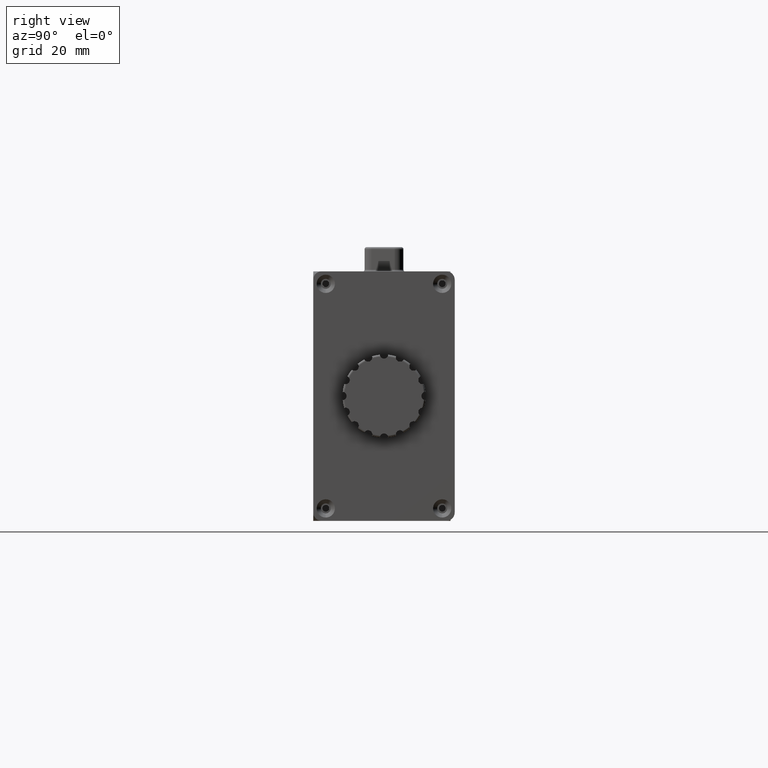
[diagram: clean part render]
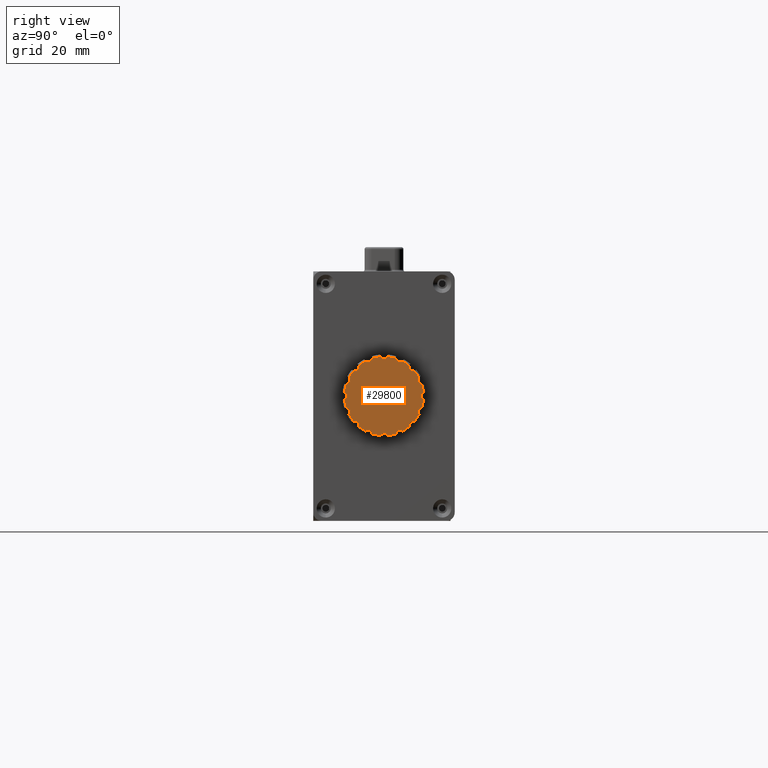
[diagram: same view with one face highlighted and labeled with its STEP entity id]
A machine part, right view. The second image highlights one B-rep face of the part: STEP entity #29800.
In plain terms, the highlighted planar face has unit normal (-1, 0, 0).
Its self-contained STEP definition (entity closure, byte-faithful):
#107 = ORIENTED_EDGE ( 'NONE', *, *, #13058, .T. ) ;
#111 = CIRCLE ( 'NONE', #13458, 9.500000000000000000 ) ;
#132 = VERTEX_POINT ( 'NONE', #15921 ) ;
#236 = DIRECTION ( 'NONE',  ( 0.0000000000000000000, -0.3826834323650759000, -0.9238795325112925100 ) ) ;
#526 = DIRECTION ( 'NONE',  ( 1.000000000000000000, -5.271885064151831000E-017, -3.465952431306727200E-016 ) ) ;
#533 = EDGE_CURVE ( 'NONE', #18393, #25741, #12400, .T. ) ;
#847 = AXIS2_PLACEMENT_3D ( 'NONE', #28408, #11118, #14014 ) ;
#864 = VERTEX_POINT ( 'NONE', #7414 ) ;
#931 = ORIENTED_EDGE ( 'NONE', *, *, #32259, .F. ) ;
#1180 = VERTEX_POINT ( 'NONE', #24219 ) ;
#1260 = CARTESIAN_POINT ( 'NONE',  ( 129.5000000000000000, 16.99999999999999600, 1.710257685525020000E-014 ) ) ;
#1399 = CARTESIAN_POINT ( 'NONE',  ( 129.5000000000000000, 24.07106781186553900, -7.071067811865393800 ) ) ;
#1405 = DIRECTION ( 'NONE',  ( 0.0000000000000000000, -3.652049423109067300E-016, 1.000000000000000000 ) ) ;
#1491 = DIRECTION ( 'NONE',  ( 0.0000000000000000000, 0.3826834323650911100, -0.9238795325112862900 ) ) ;
#1656 = VERTEX_POINT ( 'NONE', #5784 ) ;
#2031 = CARTESIAN_POINT ( 'NONE',  ( 129.5000000000000000, 16.99999999999999600, 1.710257685525020000E-014 ) ) ;
#2049 = CARTESIAN_POINT ( 'NONE',  ( 129.5000000000000000, 17.84326374877613800, 9.462500000000016300 ) ) ;
#2123 = ORIENTED_EDGE ( 'NONE', *, *, #11312, .T. ) ;
#2203 = DIRECTION ( 'NONE',  ( 1.000000000000000000, -5.271885064151831000E-017, -3.465952431306727200E-016 ) ) ;
#2222 = AXIS2_PLACEMENT_3D ( 'NONE', #8627, #5944, #20520 ) ;
#2260 = DIRECTION ( 'NONE',  ( 0.0000000000000000000, 0.7071067811865487900, -0.7071067811865462400 ) ) ;
#2483 = ORIENTED_EDGE ( 'NONE', *, *, #22172, .F. ) ;
#2573 = CIRCLE ( 'NONE', #31675, 9.500000000000000000 ) ;
#2762 = DIRECTION ( 'NONE',  ( 1.000000000000000000, -5.271885064151831000E-017, -3.465952431306727200E-016 ) ) ;
#2805 = EDGE_CURVE ( 'NONE', #22929, #10160, #36651, .T. ) ;
#2942 = ORIENTED_EDGE ( 'NONE', *, *, #27716, .F. ) ;
#2948 = EDGE_CURVE ( 'NONE', #31199, #28751, #33453, .T. ) ;
#3152 = CARTESIAN_POINT ( 'NONE',  ( 129.5000000000000000, 9.712724567933875600, 6.094720401889306400 ) ) ;
#3404 = EDGE_CURVE ( 'NONE', #31274, #10160, #5825, .T. ) ;
#3510 = CARTESIAN_POINT ( 'NONE',  ( 129.5000000000000000, 26.46250000000000600, -0.8432637487760265000 ) ) ;
#3545 = CIRCLE ( 'NONE', #23227, 9.500000000000000000 ) ;
#3645 = EDGE_CURVE ( 'NONE', #10922, #26994, #20523, .T. ) ;
#3746 = VERTEX_POINT ( 'NONE', #3152 ) ;
#3756 = ORIENTED_EDGE ( 'NONE', *, *, #14607, .F. ) ;
#3798 = VERTEX_POINT ( 'NONE', #26070 ) ;
#3867 = CIRCLE ( 'NONE', #14749, 1.000000000000000900 ) ;
#3966 = CIRCLE ( 'NONE', #27970, 9.500000000000000000 ) ;
#3969 = DIRECTION ( 'NONE',  ( 1.000000000000000000, -5.271885064151831000E-017, -3.465952431306727200E-016 ) ) ;
#4042 = ORIENTED_EDGE ( 'NONE', *, *, #26972, .F. ) ;
#4133 = DIRECTION ( 'NONE',  ( 1.000000000000000000, -5.271885064151831000E-017, -3.465952431306727200E-016 ) ) ;
#4299 = CARTESIAN_POINT ( 'NONE',  ( 129.5000000000000000, 16.99999999999999600, 1.710257685525020000E-014 ) ) ;
#4362 = ORIENTED_EDGE ( 'NONE', *, *, #24798, .T. ) ;
#4370 = CARTESIAN_POINT ( 'NONE',  ( 129.5000000000000000, 16.99999999999999600, 1.710257685525020000E-014 ) ) ;
#4552 = CIRCLE ( 'NONE', #21691, 1.000000000000000200 ) ;
#4586 = VERTEX_POINT ( 'NONE', #15248 ) ;
#4657 = DIRECTION ( 'NONE',  ( 0.0000000000000000000, 1.000000000000000000, 3.838076581973804200E-015 ) ) ;
#4732 = AXIS2_PLACEMENT_3D ( 'NONE', #8712, #3969, #9341 ) ;
#4828 = EDGE_CURVE ( 'NONE', #33041, #21184, #8389, .T. ) ;
#5353 = CARTESIAN_POINT ( 'NONE',  ( 129.5000000000000000, 26.23879532511290300, -3.826834323650785100 ) ) ;
#5784 = CARTESIAN_POINT ( 'NONE',  ( 129.5000000000000000, 26.06491314215872300, 2.842067860751759300 ) ) ;
#5800 = VERTEX_POINT ( 'NONE', #23677 ) ;
#5825 = CIRCLE ( 'NONE', #10907, 9.500000000000000000 ) ;
#5837 = EDGE_CURVE ( 'NONE', #28367, #28751, #28207, .T. ) ;
#5889 = CARTESIAN_POINT ( 'NONE',  ( 129.5000000000000000, 20.82683432365076800, 8.238795325112962000 ) ) ;
#5942 = EDGE_CURVE ( 'NONE', #18655, #29045, #15089, .T. ) ;
#5944 = DIRECTION ( 'NONE',  ( 1.000000000000000000, -5.271885064151831000E-017, -3.465952431306727200E-016 ) ) ;
#6028 = AXIS2_PLACEMENT_3D ( 'NONE', #7448, #30581, #36261 ) ;
#6090 = DIRECTION ( 'NONE',  ( 0.0000000000000000000, -3.652049423109067300E-016, 1.000000000000000000 ) ) ;
#6148 = AXIS2_PLACEMENT_3D ( 'NONE', #9018, #34777, #6090 ) ;
#6534 = CARTESIAN_POINT ( 'NONE',  ( 129.5000000000000000, 16.15673625122384700, 9.462500000000041200 ) ) ;
#6724 = CIRCLE ( 'NONE', #29772, 0.9999999999999995600 ) ;
#6736 = DIRECTION ( 'NONE',  ( 0.0000000000000000000, -1.000000000000000000, -1.082103925966007700E-014 ) ) ;
#6788 = AXIS2_PLACEMENT_3D ( 'NONE', #20263, #17709, #20770 ) ;
#6934 = AXIS2_PLACEMENT_3D ( 'NONE', #27551, #15702, #12804 ) ;
#7192 = CIRCLE ( 'NONE', #847, 0.9999999999999995600 ) ;
#7239 = ORIENTED_EDGE ( 'NONE', *, *, #30375, .F. ) ;
#7361 = DIRECTION ( 'NONE',  ( 0.0000000000000000000, -3.652049423109067300E-016, 1.000000000000000000 ) ) ;
#7363 = DIRECTION ( 'NONE',  ( 0.0000000000000000000, -1.826024711554533900E-014, 1.000000000000000000 ) ) ;
#7414 = CARTESIAN_POINT ( 'NONE',  ( 129.5000000000000000, 23.09472040188920900, 7.287275432066200800 ) ) ;
#7448 = CARTESIAN_POINT ( 'NONE',  ( 129.5000000000000000, 16.99999999999999600, 1.710257685525020000E-014 ) ) ;
#7553 = EDGE_CURVE ( 'NONE', #3746, #12588, #28517, .T. ) ;
#7718 = DIRECTION ( 'NONE',  ( 1.000000000000000000, -5.271885064151831000E-017, -3.465952431306727200E-016 ) ) ;
#7741 = AXIS2_PLACEMENT_3D ( 'NONE', #16576, #25289, #7969 ) ;
#7878 = EDGE_CURVE ( 'NONE', #28367, #27886, #19049, .T. ) ;
#7959 = ORIENTED_EDGE ( 'NONE', *, *, #16900, .F. ) ;
#7969 = DIRECTION ( 'NONE',  ( 0.0000000000000000000, 0.9238795325112850700, 0.3826834323650939500 ) ) ;
#8002 = ORIENTED_EDGE ( 'NONE', *, *, #7553, .T. ) ;
#8100 = CARTESIAN_POINT ( 'NONE',  ( 129.5000000000000000, 9.928932188134506700, 7.071067811865479100 ) ) ;
#8154 = CARTESIAN_POINT ( 'NONE',  ( 129.5000000000000000, 16.99999999999999600, 1.710257685525020000E-014 ) ) ;
#8196 = ORIENTED_EDGE ( 'NONE', *, *, #23525, .F. ) ;
#8223 = ORIENTED_EDGE ( 'NONE', *, *, #17328, .T. ) ;
#8231 = ORIENTED_EDGE ( 'NONE', *, *, #30100, .T. ) ;
#8250 = EDGE_CURVE ( 'NONE', #33041, #5800, #30000, .T. ) ;
#8380 = CARTESIAN_POINT ( 'NONE',  ( 129.5000000000000000, 12.59978390324230800, 8.419507010617353500 ) ) ;
#8389 = CIRCLE ( 'NONE', #22935, 9.500000000000000000 ) ;
#8627 = CARTESIAN_POINT ( 'NONE',  ( 129.5000000000000000, 16.99999999999999600, 1.710257685525020000E-014 ) ) ;
#8712 = CARTESIAN_POINT ( 'NONE',  ( 129.5000000000000000, 20.82683432365076800, 9.238795325112963800 ) ) ;
#8737 = AXIS2_PLACEMENT_3D ( 'NONE', #16873, #14323, #22821 ) ;
#8927 = CARTESIAN_POINT ( 'NONE',  ( 129.5000000000000000, 17.84326374877621300, -9.462499999999975500 ) ) ;
#9018 = CARTESIAN_POINT ( 'NONE',  ( 129.5000000000000000, 16.99999999999999600, 1.710257685525020000E-014 ) ) ;
#9326 = CIRCLE ( 'NONE', #14748, 1.000000000000001300 ) ;
#9341 = DIRECTION ( 'NONE',  ( 0.0000000000000000000, -0.3826834323650759000, -0.9238795325112925100 ) ) ;
#9348 = DIRECTION ( 'NONE',  ( 0.0000000000000000000, 0.3826834323650845600, 0.9238795325112890700 ) ) ;
#9937 = VERTEX_POINT ( 'NONE', #12572 ) ;
#10160 = VERTEX_POINT ( 'NONE', #16704 ) ;
#10194 = ORIENTED_EDGE ( 'NONE', *, *, #24060, .T. ) ;
#10213 = DIRECTION ( 'NONE',  ( 0.0000000000000000000, -7.304098846218134500E-015, 1.000000000000000000 ) ) ;
#10240 = VERTEX_POINT ( 'NONE', #31593 ) ;
#10259 = VERTEX_POINT ( 'NONE', #34363 ) ;
#10268 = DIRECTION ( 'NONE',  ( 1.000000000000000000, -5.271885064151831000E-017, -3.465952431306727200E-016 ) ) ;
#10304 = CARTESIAN_POINT ( 'NONE',  ( 129.5000000000000000, 7.537499999999995200, 0.8432637487761286400 ) ) ;
#10318 = CARTESIAN_POINT ( 'NONE',  ( 129.5000000000000000, 16.99999999999999300, 10.00000000000001800 ) ) ;
#10393 = CARTESIAN_POINT ( 'NONE',  ( 129.5000000000000000, 6.999999999999997300, -2.127818896448785500E-014 ) ) ;
#10468 = CIRCLE ( 'NONE', #18026, 9.500000000000000000 ) ;
#10596 = EDGE_CURVE ( 'NONE', #37090, #27886, #32244, .T. ) ;
#10849 = AXIS2_PLACEMENT_3D ( 'NONE', #11039, #31500, #37429 ) ;
#10907 = AXIS2_PLACEMENT_3D ( 'NONE', #4370, #21587, #10213 ) ;
#10922 = VERTEX_POINT ( 'NONE', #25362 ) ;
#10962 = CARTESIAN_POINT ( 'NONE',  ( 129.5000000000000000, 17.00000000000007100, -9.999999999999982200 ) ) ;
#11039 = CARTESIAN_POINT ( 'NONE',  ( 129.5000000000000000, 16.99999999999999600, 1.710257685525020000E-014 ) ) ;
#11079 = EDGE_CURVE ( 'NONE', #18393, #10259, #23645, .T. ) ;
#11118 = DIRECTION ( 'NONE',  ( 1.000000000000000000, -5.271885064151831000E-017, -3.465952431306727200E-016 ) ) ;
#11189 = DIRECTION ( 'NONE',  ( 0.0000000000000000000, 6.938893903907228400E-015, 1.000000000000000000 ) ) ;
#11261 = ORIENTED_EDGE ( 'NONE', *, *, #10596, .T. ) ;
#11312 = EDGE_CURVE ( 'NONE', #29869, #23862, #111, .T. ) ;
#11339 = CARTESIAN_POINT ( 'NONE',  ( 129.5000000000000000, 8.580492989382642900, 4.400216096757677800 ) ) ;
#11653 = DIRECTION ( 'NONE',  ( 0.0000000000000000000, -0.7071067811865384700, -0.7071067811865566800 ) ) ;
#11741 = CARTESIAN_POINT ( 'NONE',  ( 129.5000000000000000, 9.712724567933925400, -6.094720401889326800 ) ) ;
#12035 = FACE_OUTER_BOUND ( 'NONE', #27370, .T. ) ;
#12173 = DIRECTION ( 'NONE',  ( 1.000000000000000000, -5.271885064151831000E-017, -3.465952431306727200E-016 ) ) ;
#12289 = ORIENTED_EDGE ( 'NONE', *, *, #17118, .F. ) ;
#12400 = CIRCLE ( 'NONE', #15963, 1.000000000000000900 ) ;
#12457 = DIRECTION ( 'NONE',  ( 0.0000000000000000000, 0.9238795325112879600, -0.3826834323650870100 ) ) ;
#12487 = ORIENTED_EDGE ( 'NONE', *, *, #29099, .T. ) ;
#12572 = CARTESIAN_POINT ( 'NONE',  ( 129.5000000000000000, 9.928932188134483600, 6.071067811865479100 ) ) ;
#12588 = VERTEX_POINT ( 'NONE', #11339 ) ;
#12597 = DIRECTION ( 'NONE',  ( 0.0000000000000000000, -2.921639538487253900E-015, 1.000000000000000000 ) ) ;
#12768 = CARTESIAN_POINT ( 'NONE',  ( 129.5000000000000000, 7.537500000000002300, -0.8432637487761635000 ) ) ;
#12804 = DIRECTION ( 'NONE',  ( 0.0000000000000000000, 0.3826834323650911100, -0.9238795325112862900 ) ) ;
#13030 = DIRECTION ( 'NONE',  ( 1.000000000000000000, -5.271885064151831000E-017, -3.465952431306727200E-016 ) ) ;
#13058 = EDGE_CURVE ( 'NONE', #864, #29500, #10468, .T. ) ;
#13154 = ORIENTED_EDGE ( 'NONE', *, *, #2805, .F. ) ;
#13192 = CARTESIAN_POINT ( 'NONE',  ( 129.5000000000000000, 16.99999999999999600, 1.710257685525020000E-014 ) ) ;
#13235 = DIRECTION ( 'NONE',  ( 1.000000000000000000, -5.271885064151831000E-017, -3.465952431306727200E-016 ) ) ;
#13317 = DIRECTION ( 'NONE',  ( 1.000000000000000000, -5.271885064151831000E-017, -3.465952431306727200E-016 ) ) ;
#13458 = AXIS2_PLACEMENT_3D ( 'NONE', #16343, #21545, #7361 ) ;
#13474 = PLANE ( 'NONE',  #21591 ) ;
#14014 = DIRECTION ( 'NONE',  ( 0.0000000000000000000, -0.7071067811865384700, -0.7071067811865566800 ) ) ;
#14131 = ORIENTED_EDGE ( 'NONE', *, *, #3645, .F. ) ;
#14323 = DIRECTION ( 'NONE',  ( 1.000000000000000000, -5.271885064151831000E-017, -3.465952431306727200E-016 ) ) ;
#14419 = CARTESIAN_POINT ( 'NONE',  ( 129.5000000000000000, 24.07106781186538700, 7.071067811865581200 ) ) ;
#14420 = AXIS2_PLACEMENT_3D ( 'NONE', #15471, #12173, #15073 ) ;
#14567 = DIRECTION ( 'NONE',  ( 1.000000000000000000, -5.271885064151831000E-017, -3.465952431306727200E-016 ) ) ;
#14607 = EDGE_CURVE ( 'NONE', #864, #4586, #32966, .T. ) ;
#14748 = AXIS2_PLACEMENT_3D ( 'NONE', #35866, #13030, #1491 ) ;
#14749 = AXIS2_PLACEMENT_3D ( 'NONE', #26694, #526, #6736 ) ;
#14752 = EDGE_CURVE ( 'NONE', #10240, #17529, #20777, .T. ) ;
#15073 = DIRECTION ( 'NONE',  ( 0.0000000000000000000, -3.652049423109067300E-016, 1.000000000000000000 ) ) ;
#15089 = CIRCLE ( 'NONE', #4732, 1.000000000000000200 ) ;
#15216 = ORIENTED_EDGE ( 'NONE', *, *, #18945, .T. ) ;
#15248 = CARTESIAN_POINT ( 'NONE',  ( 129.5000000000000000, 24.07106781186539000, 6.071067811865581200 ) ) ;
#15365 = VERTEX_POINT ( 'NONE', #16052 ) ;
#15400 = ORIENTED_EDGE ( 'NONE', *, *, #21532, .F. ) ;
#15401 = CIRCLE ( 'NONE', #16276, 9.500000000000000000 ) ;
#15471 = CARTESIAN_POINT ( 'NONE',  ( 129.5000000000000000, 16.99999999999999600, 1.710257685525020000E-014 ) ) ;
#15679 = CARTESIAN_POINT ( 'NONE',  ( 129.5000000000000000, 10.90527959811067900, 7.287275432066113700 ) ) ;
#15702 = DIRECTION ( 'NONE',  ( 1.000000000000000000, -5.271885064151831000E-017, -3.465952431306727200E-016 ) ) ;
#15921 = CARTESIAN_POINT ( 'NONE',  ( 129.5000000000000000, 25.41950701061729100, 4.400216096757794100 ) ) ;
#15963 = AXIS2_PLACEMENT_3D ( 'NONE', #26222, #37005, #28502 ) ;
#16052 = CARTESIAN_POINT ( 'NONE',  ( 129.5000000000000000, 26.46249999999998400, 0.8432637487762655300 ) ) ;
#16230 = DIRECTION ( 'NONE',  ( 1.000000000000000000, -5.271885064151831000E-017, -3.465952431306727200E-016 ) ) ;
#16258 = CARTESIAN_POINT ( 'NONE',  ( 129.5000000000000000, 16.99999999999999300, 9.000000000000016000 ) ) ;
#16276 = AXIS2_PLACEMENT_3D ( 'NONE', #13192, #13317, #18978 ) ;
#16317 = AXIS2_PLACEMENT_3D ( 'NONE', #4299, #27063, #1405 ) ;
#16343 = CARTESIAN_POINT ( 'NONE',  ( 129.5000000000000000, 16.99999999999999600, 1.710257685525020000E-014 ) ) ;
#16414 = DIRECTION ( 'NONE',  ( 1.000000000000000000, -5.271885064151831000E-017, -3.465952431306727200E-016 ) ) ;
#16576 = CARTESIAN_POINT ( 'NONE',  ( 129.5000000000000000, 7.761204674887147300, -3.826834323650925000 ) ) ;
#16704 = CARTESIAN_POINT ( 'NONE',  ( 129.5000000000000000, 23.09472040188936900, -7.287275432066035600 ) ) ;
#16810 = DIRECTION ( 'NONE',  ( 0.0000000000000000000, 0.7071067811865487900, -0.7071067811865462400 ) ) ;
#16870 = DIRECTION ( 'NONE',  ( 1.000000000000000000, -5.271885064151831000E-017, -3.465952431306727200E-016 ) ) ;
#16873 = CARTESIAN_POINT ( 'NONE',  ( 129.5000000000000000, 9.928932188134561800, -7.071067811865497700 ) ) ;
#16900 = EDGE_CURVE ( 'NONE', #9937, #23862, #17451, .T. ) ;
#17118 = EDGE_CURVE ( 'NONE', #15365, #17529, #3867, .T. ) ;
#17328 = EDGE_CURVE ( 'NONE', #10922, #20893, #3545, .T. ) ;
#17403 = AXIS2_PLACEMENT_3D ( 'NONE', #30851, #34252, #2260 ) ;
#17451 = CIRCLE ( 'NONE', #17403, 0.9999999999999995600 ) ;
#17516 = CIRCLE ( 'NONE', #10849, 9.500000000000000000 ) ;
#17527 = AXIS2_PLACEMENT_3D ( 'NONE', #10962, #2203, #37345 ) ;
#17529 = VERTEX_POINT ( 'NONE', #3510 ) ;
#17568 = CARTESIAN_POINT ( 'NONE',  ( 129.5000000000000000, 20.82683432365076800, 9.238795325112963800 ) ) ;
#17631 = EDGE_CURVE ( 'NONE', #15365, #1656, #31611, .T. ) ;
#17709 = DIRECTION ( 'NONE',  ( 1.000000000000000000, -5.271885064151831000E-017, -3.465952431306727200E-016 ) ) ;
#17715 = CARTESIAN_POINT ( 'NONE',  ( 129.5000000000000000, 7.935086857841227500, 2.842067860751630100 ) ) ;
#18021 = CARTESIAN_POINT ( 'NONE',  ( 129.5000000000000000, 16.99999999999999600, 1.710257685525020000E-014 ) ) ;
#18026 = AXIS2_PLACEMENT_3D ( 'NONE', #18994, #16230, #7363 ) ;
#18299 = EDGE_CURVE ( 'NONE', #28325, #20893, #36091, .T. ) ;
#18388 = ORIENTED_EDGE ( 'NONE', *, *, #17631, .T. ) ;
#18393 = VERTEX_POINT ( 'NONE', #6534 ) ;
#18655 = VERTEX_POINT ( 'NONE', #37346 ) ;
#18711 = ORIENTED_EDGE ( 'NONE', *, *, #5837, .T. ) ;
#18945 = EDGE_CURVE ( 'NONE', #132, #3798, #2573, .T. ) ;
#18978 = DIRECTION ( 'NONE',  ( 0.0000000000000000000, -4.017254365419974100E-015, 1.000000000000000000 ) ) ;
#18994 = CARTESIAN_POINT ( 'NONE',  ( 129.5000000000000000, 16.99999999999999600, 1.710257685525020000E-014 ) ) ;
#19049 = CIRCLE ( 'NONE', #34938, 1.000000000000000900 ) ;
#19053 = CARTESIAN_POINT ( 'NONE',  ( 129.5000000000000000, 16.99999999999999600, 1.710257685525020000E-014 ) ) ;
#19263 = DIRECTION ( 'NONE',  ( 3.465952431306727200E-016, -3.465952431306734100E-016, 1.000000000000000000 ) ) ;
#19632 = CARTESIAN_POINT ( 'NONE',  ( 129.5000000000000000, 16.99999999999999600, 1.710257685525020000E-014 ) ) ;
#19669 = DIRECTION ( 'NONE',  ( 1.000000000000000000, -5.271885064151831000E-017, -3.465952431306727200E-016 ) ) ;
#19712 = CARTESIAN_POINT ( 'NONE',  ( 129.5000000000000000, 13.17316567634908800, 8.238795325112882000 ) ) ;
#19848 = EDGE_CURVE ( 'NONE', #31051, #10259, #9326, .T. ) ;
#19912 = CARTESIAN_POINT ( 'NONE',  ( 129.5000000000000000, 19.84206786075171200, -9.064913142158692600 ) ) ;
#20234 = CIRCLE ( 'NONE', #6788, 1.000000000000000200 ) ;
#20263 = CARTESIAN_POINT ( 'NONE',  ( 129.5000000000000000, 20.82683432365097100, -9.238795325112793200 ) ) ;
#20520 = DIRECTION ( 'NONE',  ( 0.0000000000000000000, 3.652049423109067300E-016, 1.000000000000000000 ) ) ;
#20523 = CIRCLE ( 'NONE', #8737, 1.000000000000000000 ) ;
#20770 = DIRECTION ( 'NONE',  ( 0.0000000000000000000, -0.3826834323650967200, 0.9238795325112838500 ) ) ;
#20777 = CIRCLE ( 'NONE', #16317, 9.500000000000000000 ) ;
#20856 = CARTESIAN_POINT ( 'NONE',  ( 129.5000000000000000, 13.17316567634915900, -9.238795325112874900 ) ) ;
#20893 = VERTEX_POINT ( 'NONE', #35444 ) ;
#21184 = VERTEX_POINT ( 'NONE', #19912 ) ;
#21192 = ORIENTED_EDGE ( 'NONE', *, *, #8250, .F. ) ;
#21223 = ORIENTED_EDGE ( 'NONE', *, *, #19848, .F. ) ;
#21532 = EDGE_CURVE ( 'NONE', #29869, #31051, #37312, .T. ) ;
#21545 = DIRECTION ( 'NONE',  ( 1.000000000000000000, -5.271885064151831000E-017, -3.465952431306727200E-016 ) ) ;
#21557 = CARTESIAN_POINT ( 'NONE',  ( 129.5000000000000000, 24.28727543206615600, -6.094720401889219400 ) ) ;
#21579 = CARTESIAN_POINT ( 'NONE',  ( 129.5000000000000000, 21.40021609675775200, -8.419507010617262900 ) ) ;
#21587 = DIRECTION ( 'NONE',  ( 1.000000000000000000, -5.271885064151831000E-017, -3.465952431306727200E-016 ) ) ;
#21591 = AXIS2_PLACEMENT_3D ( 'NONE', #2031, #25220, #19263 ) ;
#21615 = DIRECTION ( 'NONE',  ( 0.0000000000000000000, -3.652049423109067300E-016, 1.000000000000000000 ) ) ;
#21633 = CIRCLE ( 'NONE', #33076, 1.000000000000001600 ) ;
#21636 = DIRECTION ( 'NONE',  ( 0.0000000000000000000, -0.7071067811865545700, 0.7071067811865406900 ) ) ;
#21639 = AXIS2_PLACEMENT_3D ( 'NONE', #14419, #2762, #11653 ) ;
#21691 = AXIS2_PLACEMENT_3D ( 'NONE', #5353, #16870, #22584 ) ;
#22043 = AXIS2_PLACEMENT_3D ( 'NONE', #17568, #35116, #236 ) ;
#22054 = ORIENTED_EDGE ( 'NONE', *, *, #533, .F. ) ;
#22172 = EDGE_CURVE ( 'NONE', #10240, #1180, #4552, .T. ) ;
#22584 = DIRECTION ( 'NONE',  ( 0.0000000000000000000, -0.9238795325112907400, 0.3826834323650802300 ) ) ;
#22679 = ORIENTED_EDGE ( 'NONE', *, *, #4828, .T. ) ;
#22821 = DIRECTION ( 'NONE',  ( 0.0000000000000000000, 0.7071067811865432400, 0.7071067811865519000 ) ) ;
#22929 = VERTEX_POINT ( 'NONE', #21557 ) ;
#22935 = AXIS2_PLACEMENT_3D ( 'NONE', #8154, #19669, #11189 ) ;
#22957 = DIRECTION ( 'NONE',  ( 0.0000000000000000000, -0.9238795325112826300, -0.3826834323650996600 ) ) ;
#23227 = AXIS2_PLACEMENT_3D ( 'NONE', #19632, #28669, #28801 ) ;
#23436 = CARTESIAN_POINT ( 'NONE',  ( 129.5000000000000000, 26.23879532511282200, 3.826834323651018300 ) ) ;
#23525 = EDGE_CURVE ( 'NONE', #4586, #3798, #7192, .T. ) ;
#23572 = ORIENTED_EDGE ( 'NONE', *, *, #18299, .F. ) ;
#23621 = CARTESIAN_POINT ( 'NONE',  ( 129.5000000000000000, 16.99999999999999600, 1.710257685525020000E-014 ) ) ;
#23645 = CIRCLE ( 'NONE', #6148, 9.500000000000000000 ) ;
#23677 = CARTESIAN_POINT ( 'NONE',  ( 129.5000000000000000, 16.15673625122392200, -9.462499999999963100 ) ) ;
#23862 = VERTEX_POINT ( 'NONE', #15679 ) ;
#24060 = EDGE_CURVE ( 'NONE', #22929, #1180, #3966, .T. ) ;
#24132 = CARTESIAN_POINT ( 'NONE',  ( 129.5000000000000000, 14.15793213924841600, -9.064913142158761900 ) ) ;
#24219 = CARTESIAN_POINT ( 'NONE',  ( 129.5000000000000000, 25.41950701061739100, -4.400216096757578300 ) ) ;
#24413 = CIRCLE ( 'NONE', #26939, 0.9999999999999995600 ) ;
#24628 = CIRCLE ( 'NONE', #35168, 1.000000000000000900 ) ;
#24798 = EDGE_CURVE ( 'NONE', #18655, #25858, #17516, .T. ) ;
#25220 = DIRECTION ( 'NONE',  ( -1.000000000000000000, 5.271885064151831000E-017, 3.465952431306727200E-016 ) ) ;
#25289 = DIRECTION ( 'NONE',  ( 1.000000000000000000, -5.271885064151831000E-017, -3.465952431306727200E-016 ) ) ;
#25362 = CARTESIAN_POINT ( 'NONE',  ( 129.5000000000000000, 10.90527959811073400, -7.287275432066124400 ) ) ;
#25741 = VERTEX_POINT ( 'NONE', #16258 ) ;
#25858 = VERTEX_POINT ( 'NONE', #2049 ) ;
#26070 = CARTESIAN_POINT ( 'NONE',  ( 129.5000000000000000, 24.28727543206603200, 6.094720401889412100 ) ) ;
#26222 = CARTESIAN_POINT ( 'NONE',  ( 129.5000000000000000, 16.99999999999999300, 10.00000000000001800 ) ) ;
#26456 = DIRECTION ( 'NONE',  ( 1.000000000000000000, -5.271885064151831000E-017, -3.465952431306727200E-016 ) ) ;
#26482 = CARTESIAN_POINT ( 'NONE',  ( 129.5000000000000000, 8.580492989382674900, -4.400216096757705300 ) ) ;
#26623 = DIRECTION ( 'NONE',  ( 1.000000000000000000, -5.271885064151831000E-017, -3.465952431306727200E-016 ) ) ;
#26694 = CARTESIAN_POINT ( 'NONE',  ( 129.5000000000000000, 26.99999999999999600, 1.253129694518509300E-013 ) ) ;
#26939 = AXIS2_PLACEMENT_3D ( 'NONE', #8100, #31207, #16810 ) ;
#26972 = EDGE_CURVE ( 'NONE', #29045, #29500, #32051, .T. ) ;
#26994 = VERTEX_POINT ( 'NONE', #11741 ) ;
#27060 = CARTESIAN_POINT ( 'NONE',  ( 129.5000000000000000, 7.935086857841254100, -2.842067860751667400 ) ) ;
#27063 = DIRECTION ( 'NONE',  ( 1.000000000000000000, -5.271885064151831000E-017, -3.465952431306727200E-016 ) ) ;
#27136 = CARTESIAN_POINT ( 'NONE',  ( 129.5000000000000000, 21.40021609675756400, 8.419507010617445900 ) ) ;
#27370 = EDGE_LOOP ( 'NONE', ( #107, #4042, #36909, #4362, #931, #22054, #36251, #21223, #15400, #2123, #7959, #7239, #8002, #2942, #11261, #32844, #18711, #36107, #8231, #14131, #8223, #23572, #12487, #21192, #22679, #32037, #33927, #13154, #10194, #2483, #33955, #12289, #18388, #30322, #15216, #8196, #3756 ) ) ;
#27551 = CARTESIAN_POINT ( 'NONE',  ( 129.5000000000000000, 13.17316567634908800, 9.238795325112882000 ) ) ;
#27716 = EDGE_CURVE ( 'NONE', #37090, #12588, #6724, .T. ) ;
#27886 = VERTEX_POINT ( 'NONE', #10304 ) ;
#27970 = AXIS2_PLACEMENT_3D ( 'NONE', #19053, #16414, #33334 ) ;
#28207 = CIRCLE ( 'NONE', #14420, 9.500000000000000000 ) ;
#28325 = VERTEX_POINT ( 'NONE', #24132 ) ;
#28331 = CIRCLE ( 'NONE', #33682, 9.500000000000000000 ) ;
#28367 = VERTEX_POINT ( 'NONE', #12768 ) ;
#28408 = CARTESIAN_POINT ( 'NONE',  ( 129.5000000000000000, 24.07106781186538700, 7.071067811865581200 ) ) ;
#28502 = DIRECTION ( 'NONE',  ( 0.0000000000000000000, 0.0000000000000000000, -1.000000000000000000 ) ) ;
#28517 = CIRCLE ( 'NONE', #2222, 9.500000000000000000 ) ;
#28669 = DIRECTION ( 'NONE',  ( 1.000000000000000000, -5.271885064151831000E-017, -3.465952431306727200E-016 ) ) ;
#28702 = EDGE_CURVE ( 'NONE', #31274, #21184, #20234, .T. ) ;
#28751 = VERTEX_POINT ( 'NONE', #27060 ) ;
#28801 = DIRECTION ( 'NONE',  ( 0.0000000000000000000, -5.843279076974507700E-015, 1.000000000000000000 ) ) ;
#29045 = VERTEX_POINT ( 'NONE', #5889 ) ;
#29099 = EDGE_CURVE ( 'NONE', #28325, #5800, #28331, .T. ) ;
#29177 = AXIS2_PLACEMENT_3D ( 'NONE', #1260, #4133, #21615 ) ;
#29500 = VERTEX_POINT ( 'NONE', #27136 ) ;
#29758 = DIRECTION ( 'NONE',  ( 1.000000000000000000, -5.271885064151831000E-017, -3.465952431306727200E-016 ) ) ;
#29772 = AXIS2_PLACEMENT_3D ( 'NONE', #35292, #29758, #12457 ) ;
#29800 = ADVANCED_FACE ( 'NONE', ( #12035 ), #13474, .F. ) ;
#29869 = VERTEX_POINT ( 'NONE', #8380 ) ;
#30000 = CIRCLE ( 'NONE', #17527, 1.000000000000000900 ) ;
#30100 = EDGE_CURVE ( 'NONE', #31199, #26994, #15401, .T. ) ;
#30322 = ORIENTED_EDGE ( 'NONE', *, *, #35471, .F. ) ;
#30375 = EDGE_CURVE ( 'NONE', #3746, #9937, #24413, .T. ) ;
#30581 = DIRECTION ( 'NONE',  ( 1.000000000000000000, -5.271885064151831000E-017, -3.465952431306727200E-016 ) ) ;
#30851 = CARTESIAN_POINT ( 'NONE',  ( 129.5000000000000000, 9.928932188134506700, 7.071067811865479100 ) ) ;
#30883 = DIRECTION ( 'NONE',  ( 0.0000000000000000000, 0.0000000000000000000, -1.000000000000000000 ) ) ;
#31051 = VERTEX_POINT ( 'NONE', #19712 ) ;
#31199 = VERTEX_POINT ( 'NONE', #26482 ) ;
#31207 = DIRECTION ( 'NONE',  ( 1.000000000000000000, -5.271885064151831000E-017, -3.465952431306727200E-016 ) ) ;
#31274 = VERTEX_POINT ( 'NONE', #21579 ) ;
#31500 = DIRECTION ( 'NONE',  ( 1.000000000000000000, -5.271885064151831000E-017, -3.465952431306727200E-016 ) ) ;
#31593 = CARTESIAN_POINT ( 'NONE',  ( 129.5000000000000000, 26.06491314215878700, -2.842067860751529700 ) ) ;
#31611 = CIRCLE ( 'NONE', #6028, 9.500000000000000000 ) ;
#31675 = AXIS2_PLACEMENT_3D ( 'NONE', #18021, #26456, #12597 ) ;
#32037 = ORIENTED_EDGE ( 'NONE', *, *, #28702, .F. ) ;
#32051 = CIRCLE ( 'NONE', #22043, 1.000000000000000200 ) ;
#32244 = CIRCLE ( 'NONE', #29177, 9.500000000000000000 ) ;
#32259 = EDGE_CURVE ( 'NONE', #25741, #25858, #24628, .T. ) ;
#32844 = ORIENTED_EDGE ( 'NONE', *, *, #7878, .F. ) ;
#32966 = CIRCLE ( 'NONE', #21639, 0.9999999999999995600 ) ;
#33041 = VERTEX_POINT ( 'NONE', #8927 ) ;
#33076 = AXIS2_PLACEMENT_3D ( 'NONE', #23436, #14567, #22957 ) ;
#33334 = DIRECTION ( 'NONE',  ( 0.0000000000000000000, 8.399713673150855900E-015, 1.000000000000000000 ) ) ;
#33453 = CIRCLE ( 'NONE', #7741, 1.000000000000000700 ) ;
#33682 = AXIS2_PLACEMENT_3D ( 'NONE', #23621, #26623, #34965 ) ;
#33927 = ORIENTED_EDGE ( 'NONE', *, *, #3404, .T. ) ;
#33955 = ORIENTED_EDGE ( 'NONE', *, *, #14752, .T. ) ;
#34252 = DIRECTION ( 'NONE',  ( 1.000000000000000000, -5.271885064151831000E-017, -3.465952431306727200E-016 ) ) ;
#34363 = CARTESIAN_POINT ( 'NONE',  ( 129.5000000000000000, 14.15793213924834500, 9.064913142158772500 ) ) ;
#34590 = AXIS2_PLACEMENT_3D ( 'NONE', #20856, #35097, #9348 ) ;
#34777 = DIRECTION ( 'NONE',  ( 1.000000000000000000, -5.271885064151831000E-017, -3.465952431306727200E-016 ) ) ;
#34938 = AXIS2_PLACEMENT_3D ( 'NONE', #10393, #7718, #4657 ) ;
#34965 = DIRECTION ( 'NONE',  ( 0.0000000000000000000, -5.843279076974507700E-015, 1.000000000000000000 ) ) ;
#35097 = DIRECTION ( 'NONE',  ( 1.000000000000000000, -5.271885064151831000E-017, -3.465952431306727200E-016 ) ) ;
#35116 = DIRECTION ( 'NONE',  ( 1.000000000000000000, -5.271885064151831000E-017, -3.465952431306727200E-016 ) ) ;
#35168 = AXIS2_PLACEMENT_3D ( 'NONE', #10318, #13235, #30883 ) ;
#35292 = CARTESIAN_POINT ( 'NONE',  ( 129.5000000000000000, 7.761204674887118800, 3.826834323650887300 ) ) ;
#35444 = CARTESIAN_POINT ( 'NONE',  ( 129.5000000000000000, 12.59978390324236700, -8.419507010617353500 ) ) ;
#35471 = EDGE_CURVE ( 'NONE', #132, #1656, #21633, .T. ) ;
#35866 = CARTESIAN_POINT ( 'NONE',  ( 129.5000000000000000, 13.17316567634908800, 9.238795325112882000 ) ) ;
#36091 = CIRCLE ( 'NONE', #34590, 1.000000000000000200 ) ;
#36107 = ORIENTED_EDGE ( 'NONE', *, *, #2948, .F. ) ;
#36251 = ORIENTED_EDGE ( 'NONE', *, *, #11079, .T. ) ;
#36261 = DIRECTION ( 'NONE',  ( 0.0000000000000000000, -5.843279076974507700E-015, 1.000000000000000000 ) ) ;
#36651 = CIRCLE ( 'NONE', #36811, 1.000000000000001300 ) ;
#36811 = AXIS2_PLACEMENT_3D ( 'NONE', #1399, #10268, #21636 ) ;
#36909 = ORIENTED_EDGE ( 'NONE', *, *, #5942, .F. ) ;
#37005 = DIRECTION ( 'NONE',  ( 1.000000000000000000, -5.271885064151831000E-017, -3.465952431306727200E-016 ) ) ;
#37090 = VERTEX_POINT ( 'NONE', #17715 ) ;
#37312 = CIRCLE ( 'NONE', #6934, 1.000000000000001300 ) ;
#37345 = DIRECTION ( 'NONE',  ( 0.0000000000000000000, -6.938893903907222100E-015, 1.000000000000000000 ) ) ;
#37346 = CARTESIAN_POINT ( 'NONE',  ( 129.5000000000000000, 19.84206786075151300, 9.064913142158843600 ) ) ;
#37429 = DIRECTION ( 'NONE',  ( 0.0000000000000000000, -1.643422240399080300E-014, 1.000000000000000000 ) ) ;